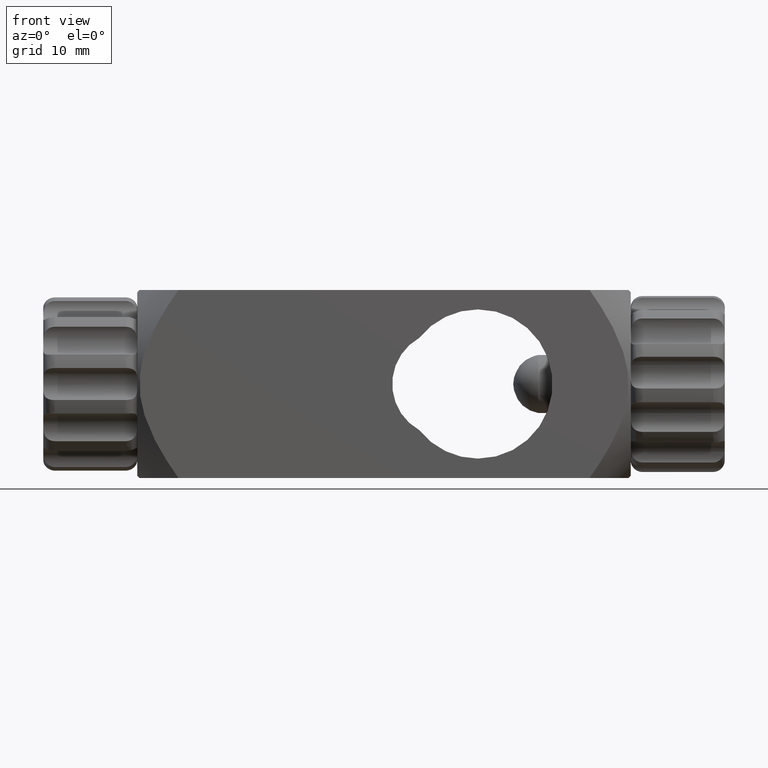
[diagram: clean part render]
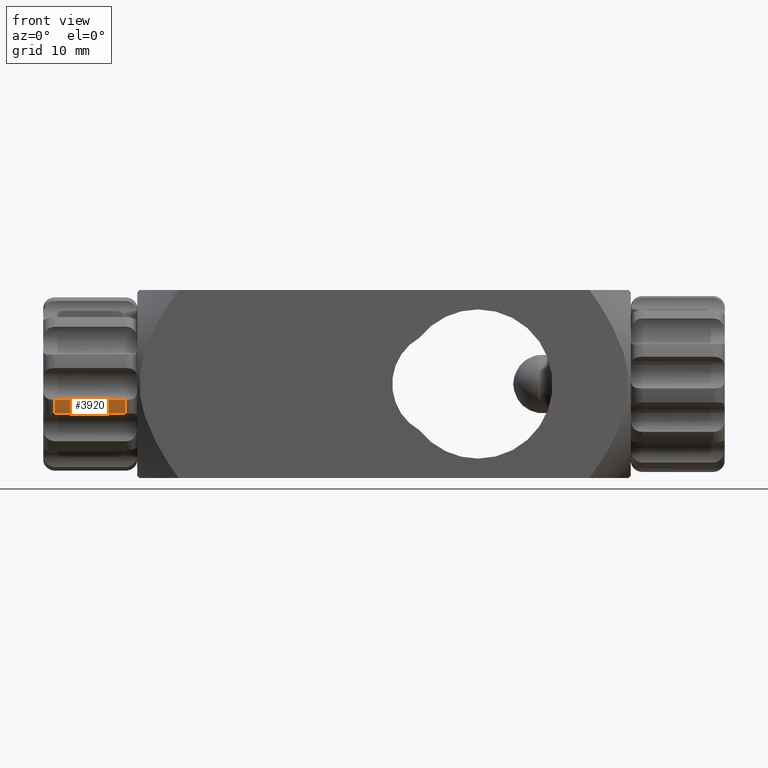
[diagram: same view with one face highlighted and labeled with its STEP entity id]
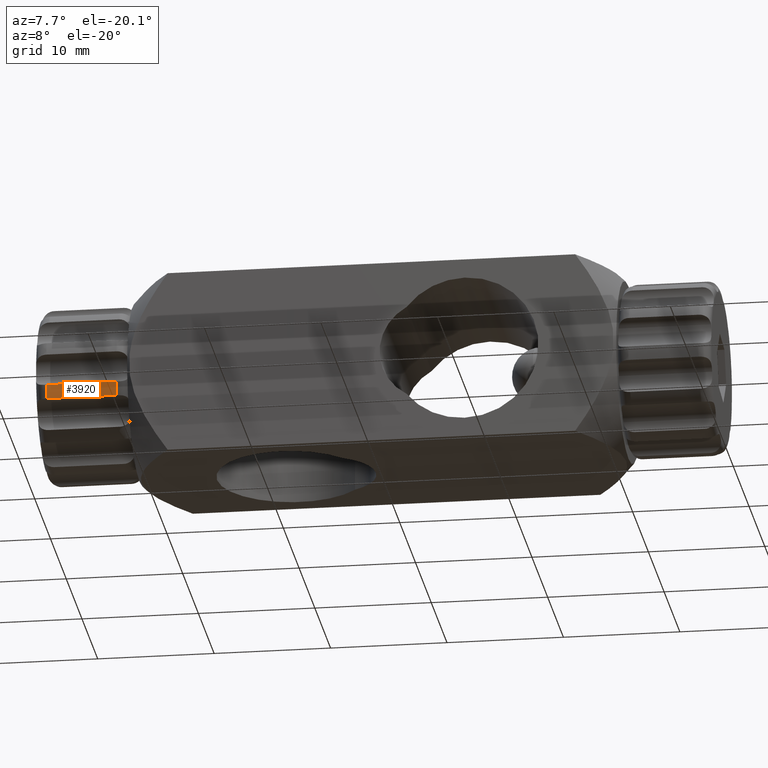
[diagram: same view with one face highlighted and labeled with its STEP entity id]
A machine part, front view. The second image highlights one B-rep face of the part: STEP entity #3920.
A second angle (auxiliary view) of the same face is appended — the face is thin or edge-on in the first view.
In plain terms, the highlighted cylindrical surface (partial cylindrical patch) has radius 7.5 mm, axis along (-1, -0, 0).
Its self-contained STEP definition (entity closure, byte-faithful):
#88 = CARTESIAN_POINT ( 'NONE',  ( -22.00000000000001400, 3.469446951953622500E-015, 5.689554394921906000E-030 ) ) ;
#91 = CIRCLE ( 'NONE', #2122, 7.500000000000024000 ) ;
#456 = DIRECTION ( 'NONE',  ( -1.000000000000000000, -2.958228394578804800E-031, 9.860761315262730800E-032 ) ) ;
#496 = DIRECTION ( 'NONE',  ( 0.0000000000000000000, 1.887379141862758600E-015, 1.000000000000000000 ) ) ;
#545 = CARTESIAN_POINT ( 'NONE',  ( -27.99999999999999600, -7.068731860074961100, -2.506597273269391700 ) ) ;
#571 = VERTEX_POINT ( 'NONE', #5872 ) ;
#586 = CARTESIAN_POINT ( 'NONE',  ( -27.99999999999999600, -7.375000000000006200, -1.363589014329547500 ) ) ;
#729 = AXIS2_PLACEMENT_3D ( 'NONE', #1358, #3252, #496 ) ;
#1054 = EDGE_CURVE ( 'NONE', #2726, #571, #3759, .T. ) ;
#1183 = ORIENTED_EDGE ( 'NONE', *, *, #5255, .T. ) ;
#1358 = CARTESIAN_POINT ( 'NONE',  ( -81.74721697122451800, -7.115968764149461700E-044, 7.937042083089784200E-044 ) ) ;
#1900 = DIRECTION ( 'NONE',  ( -1.000000000000000000, -2.958228394578804800E-031, 9.860761315262730800E-032 ) ) ;
#2000 = CARTESIAN_POINT ( 'NONE',  ( -27.99999999999999600, -2.736911063134408300E-045, 1.915837744194085800E-044 ) ) ;
#2032 = ORIENTED_EDGE ( 'NONE', *, *, #1054, .T. ) ;
#2122 = AXIS2_PLACEMENT_3D ( 'NONE', #88, #1900, #3730 ) ;
#2483 = VECTOR ( 'NONE', #5025, 1000.000000000000000 ) ;
#2551 = VERTEX_POINT ( 'NONE', #2727 ) ;
#2726 = VERTEX_POINT ( 'NONE', #545 ) ;
#2727 = CARTESIAN_POINT ( 'NONE',  ( -22.00000000000001400, -7.375000000000000000, -1.363589014329525700 ) ) ;
#2750 = VECTOR ( 'NONE', #456, 1000.000000000000000 ) ;
#2873 = CIRCLE ( 'NONE', #4868, 7.500000000000029300 ) ;
#2906 = DIRECTION ( 'NONE',  ( 0.0000000000000000000, 1.887379141862758200E-015, 1.000000000000000000 ) ) ;
#2943 = EDGE_LOOP ( 'NONE', ( #3272, #2032, #1183, #4861 ) ) ;
#3252 = DIRECTION ( 'NONE',  ( -1.000000000000000000, -2.958228394578804800E-031, 9.860761315262730800E-032 ) ) ;
#3272 = ORIENTED_EDGE ( 'NONE', *, *, #5798, .F. ) ;
#3578 = CARTESIAN_POINT ( 'NONE',  ( -25.00000000000000400, -7.068731860074963800, -2.506597273269391700 ) ) ;
#3730 = DIRECTION ( 'NONE',  ( 0.0000000000000000000, 1.887379141862758200E-015, 1.000000000000000000 ) ) ;
#3759 = LINE ( 'NONE', #3578, #2483 ) ;
#3920 = ADVANCED_FACE ( 'NONE', ( #4241 ), #4472, .T. ) ;
#3983 = VERTEX_POINT ( 'NONE', #586 ) ;
#4241 = FACE_OUTER_BOUND ( 'NONE', #2943, .T. ) ;
#4472 = CYLINDRICAL_SURFACE ( 'NONE', #729, 7.500000000000026600 ) ;
#4861 = ORIENTED_EDGE ( 'NONE', *, *, #5147, .T. ) ;
#4868 = AXIS2_PLACEMENT_3D ( 'NONE', #2000, #5637, #2906 ) ;
#4964 = LINE ( 'NONE', #4979, #2750 ) ;
#4979 = CARTESIAN_POINT ( 'NONE',  ( -25.00000000000000000, -7.375000000000009800, -1.363589014329547700 ) ) ;
#5025 = DIRECTION ( 'NONE',  ( 1.000000000000000000, 2.958228394578804800E-031, -9.860761315262730800E-032 ) ) ;
#5147 = EDGE_CURVE ( 'NONE', #2551, #3983, #4964, .T. ) ;
#5255 = EDGE_CURVE ( 'NONE', #571, #2551, #91, .T. ) ;
#5637 = DIRECTION ( 'NONE',  ( -1.000000000000000000, -2.958228394578804800E-031, 9.860761315262730800E-032 ) ) ;
#5798 = EDGE_CURVE ( 'NONE', #2726, #3983, #2873, .T. ) ;
#5872 = CARTESIAN_POINT ( 'NONE',  ( -22.00000000000001400, -7.068731860074957600, -2.506597273269385100 ) ) ;